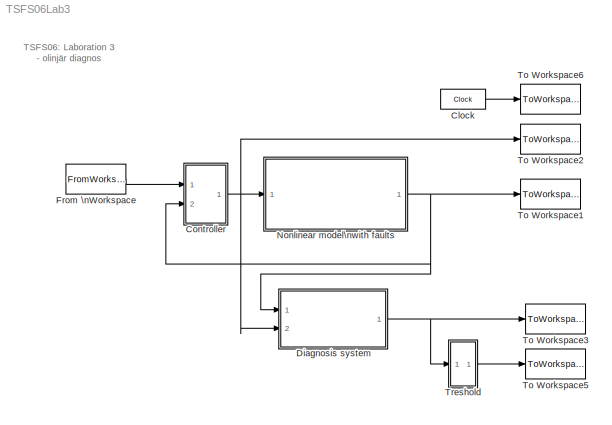
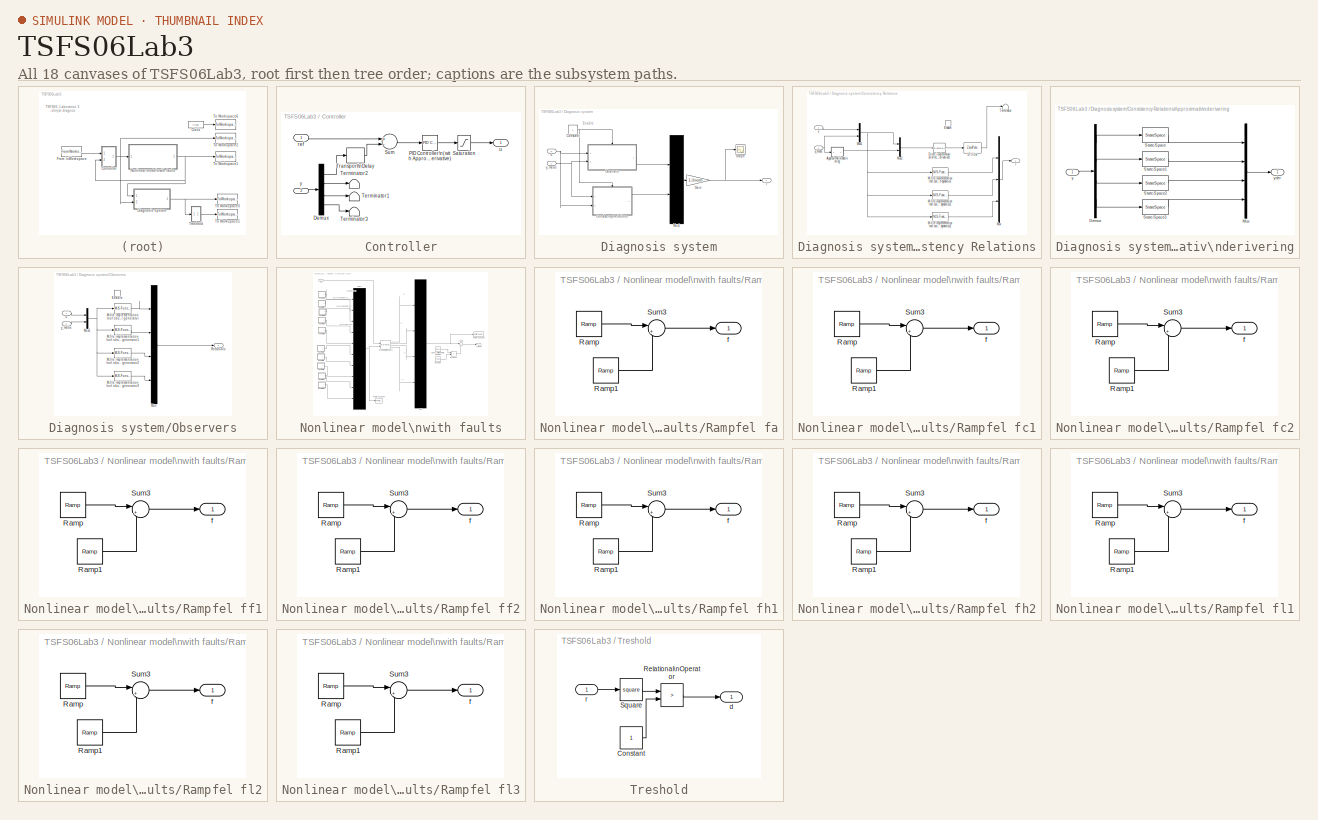
[diagram: thumbnail index - all 18 canvases of the model, root first then tree order]
MODEL TSFS06Lab3
KIND model
BLOCK [Clock] Clock
  DisplayTime = on
  SID = 1
BLOCK [SubSystem] Controller
  Ports = [2, 1]
  RequestExecContextInheritance = off
  SID = 2
BLOCK [Demux] Controller/Demux
  Ports = [1, 4]
  SID = 5
BLOCK [Reference] Controller/PID Controller\n(with Approximate\nDerivative)  REF=simulink_need_slupdate/PID Controller\n(with Approximate\nDerivative)
  D = 0
  I = 4
  N = 100
  P = 10
  Ports = [1, 1]
  SID = 6
  SourceBlock = simulink_need_slupdate/PID Controller\n(with Approximate\nDerivative)
  SourceProductBaseCode = SL
  SourceProductName = Simulink
  SourceType = PID(2) Controller
BLOCK [Saturate] Controller/Saturation
  InputPortMap = u0
  LowerLimit = 0
  Ports = [1, 1]
  SID = 7
  SampleTime = 0.1
  UpperLimit = 10
BLOCK [Sum] Controller/Sum
  Inputs = +-
  Ports = [2, 1]
  SID = 8
BLOCK [Terminator] Controller/Terminator1
  SID = 9
BLOCK [Terminator] Controller/Terminator2
  SID = 10
BLOCK [Terminator] Controller/Terminator3
  SID = 11
BLOCK [TransportDelay] Controller/Transport\nDelay
  DelayTime = 0.1
  InitialOutput = h1Init
  Ports = [1, 1]
  SID = 12
BLOCK [Inport] Controller/ref
  IconDisplay = Port number
  SID = 3
BLOCK [Outport] Controller/u
  IconDisplay = Port number
  SID = 13
BLOCK [Inport] Controller/y
  IconDisplay = Port number
  Port = 2
  SID = 4
BLOCK [SubSystem] Diagnosis system
  Ports = [2, 1]
  RequestExecContextInheritance = off
  SID = 14
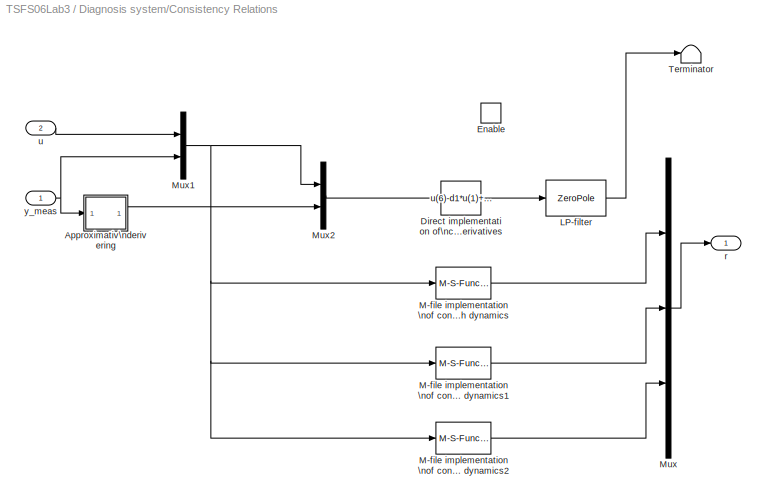
BLOCK [SubSystem] Diagnosis system/Consistency Relations
  Ports = [2, 1, 1]
  RequestExecContextInheritance = off
  SID = 17
BLOCK [SubSystem] Diagnosis system/Consistency Relations/Approximativ\nderivering
  Ports = [1, 1]
  RequestExecContextInheritance = off
  SID = 21
BLOCK [Demux] Diagnosis system/Consistency Relations/Approximativ\nderivering/Demux
  Ports = [1, 4]
  SID = 23
BLOCK [Mux] Diagnosis system/Consistency Relations/Approximativ\nderivering/Mux
  DisplayOption = bar
  Ports = [4, 1]
  SID = 24
BLOCK [StateSpace] Diagnosis system/Consistency Relations/Approximativ\nderivering/State-Space
  A = s
  B = -s^2
  D = -s
  InitialCondition = s*watertankparams.x0(1)
  Ports = [1, 1]
  SID = 136
BLOCK [StateSpace] Diagnosis system/Consistency Relations/Approximativ\nderivering/State-Space1
  A = s
  B = -s^2
  D = -s
  InitialCondition = s*watertankparams.x0(2)
  Ports = [1, 1]
  SID = 138
BLOCK [StateSpace] Diagnosis system/Consistency Relations/Approximativ\nderivering/State-Space2
  A = s
  B = -s^2
  D = -s
  InitialCondition = s*watertankparams.d(5)*sqrt(watertankparams.x0(1))
  Ports = [1, 1]
  SID = 139
BLOCK [StateSpace] Diagnosis system/Consistency Relations/Approximativ\nderivering/State-Space3
  A = s
  B = -s^2
  D = -s
  InitialCondition = s*watertankparams.d(6)*sqrt(watertankparams.x0(2))
  Ports = [1, 1]
  SID = 140
BLOCK [Inport] Diagnosis system/Consistency Relations/Approximativ\nderivering/y
  IconDisplay = Port number
  SID = 22
BLOCK [Outport] Diagnosis system/Consistency Relations/Approximativ\nderivering/yder
  IconDisplay = Port number
  SID = 29
BLOCK [Fcn] Diagnosis system/Consistency Relations/Direct implementation of\nconsistency relations using approximated\nderivatives
  Expr = u(6)-d1*u(1)+d2*sqrt(u(2))
  SID = 30
BLOCK [EnablePort] Diagnosis system/Consistency Relations/Enable
  Ports = []
  SID = 20
BLOCK [ZeroPole] Diagnosis system/Consistency Relations/LP-filter
  Poles = [-1]
  SID = 141
  Zeros = []
BLOCK [M-S-Function] Diagnosis system/Consistency Relations/M-file implementation\nof consistency relation\nwith dynamics
  FunctionName = consrel1
  Parameters = c1params
  Ports = [1, 1]
  SID = 32
BLOCK [M-S-Function] Diagnosis system/Consistency Relations/M-file implementation\nof consistency relation\nwith dynamics1
  FunctionName = consrel2
  Parameters = c2params
  Ports = [1, 1]
  SID = 153
BLOCK [M-S-Function] Diagnosis system/Consistency Relations/M-file implementation\nof consistency relation\nwith dynamics2
  FunctionName = consrel3
  Parameters = c3params
  Ports = [1, 1]
  SID = 161
BLOCK [Mux] Diagnosis system/Consistency Relations/Mux
  DisplayOption = bar
  Inputs = 3
  Ports = [3, 1]
  SID = 33
BLOCK [Mux] Diagnosis system/Consistency Relations/Mux1
  DisplayOption = bar
  Inputs = 2
  Ports = [2, 1]
  SID = 34
BLOCK [Mux] Diagnosis system/Consistency Relations/Mux2
  DisplayOption = bar
  Inputs = 2
  Ports = [2, 1]
  SID = 35
BLOCK [Terminator] Diagnosis system/Consistency Relations/Terminator
  SID = 162
BLOCK [Outport] Diagnosis system/Consistency Relations/r
  IconDisplay = Port number
  SID = 36
BLOCK [Inport] Diagnosis system/Consistency Relations/u
  IconDisplay = Port number
  Port = 2
  SID = 19
BLOCK [Inport] Diagnosis system/Consistency Relations/y_meas
  IconDisplay = Port number
  SID = 18
BLOCK [Constant] Diagnosis system/Constant
  SID = 37
BLOCK [Gain] Diagnosis system/Gain
  Gain = 1./Jnorm
  SID = 38
BLOCK [Mux] Diagnosis system/Mux1
  Inputs = 2
  Ports = [2, 1]
  SID = 39
BLOCK [SubSystem] Diagnosis system/Observers
  Ports = [2, 1, 1]
  RequestExecContextInheritance = off
  SID = 40
BLOCK [EnablePort] Diagnosis system/Observers/Enable
  Ports = []
  SID = 43
BLOCK [M-S-Function] Diagnosis system/Observers/M-file implementation\nof observer based\nresidual generator
  FunctionName = obs1
  Parameters = obs1params
  Ports = [1, 1]
  SID = 44
BLOCK [M-S-Function] Diagnosis system/Observers/M-file implementation\nof observer based\nresidual generator1
  FunctionName = obs2
  Parameters = obs2params
  Ports = [1, 1]
  SID = 157
BLOCK [M-S-Function] Diagnosis system/Observers/M-file implementation\nof observer based\nresidual generator2
  FunctionName = obs3
  Parameters = obs3params
  Ports = [1, 1]
  SID = 158
BLOCK [M-S-Function] Diagnosis system/Observers/M-file implementation\nof observer based\nresidual generator3
  FunctionName = obs4
  Parameters = obs4params
  Ports = [1, 1]
  SID = 159
BLOCK [Mux] Diagnosis system/Observers/Mux
  Ports = [4, 1]
  SID = 45
BLOCK [Mux] Diagnosis system/Observers/Mux1
  DisplayOption = bar
  Inputs = 2
  Ports = [2, 1]
  SID = 46
BLOCK [Outport] Diagnosis system/Observers/Residuals
  IconDisplay = Port number
  SID = 47
BLOCK [Inport] Diagnosis system/Observers/u
  IconDisplay = Port number
  SID = 41
BLOCK [Inport] Diagnosis system/Observers/y_meas
  IconDisplay = Port number
  Port = 2
  SID = 42
BLOCK [Scope] Diagnosis system/Scope
  Floating = off
  NumInputPorts = 1
  Ports = [1]
  SID = 167
  ScopeSpecificationString = Simulink.scopes.TimeScopeBlockCfg('CurrentConfiguration', extmgr.ConfigurationSet(extmgr.Configuration('Core','General UI',true),extmgr.Configuration('Core','Source UI',true),extmgr.Configuration('Sources','WiredSimulink',true),extmgr.Configuration('Visuals','Time Domain',true,'SerializedDisplays',{struct('MinYLimReal','-20.70192','MaxYLimReal','5.16699','YLabelReal','','MinYLimMag','0.00000','Max...<+1592ch>
BLOCK [Outport] Diagnosis system/r
  IconDisplay = Port number
  SID = 48
BLOCK [Inport] Diagnosis system/u
  IconDisplay = Port number
  Port = 2
  SID = 16
BLOCK [Inport] Diagnosis system/y_meas
  IconDisplay = Port number
  SID = 15
BLOCK [FromWorkspace] From \nWorkspace
  SID = 49
  SampleTime = 0.1
  VariableName = [t,Uref]
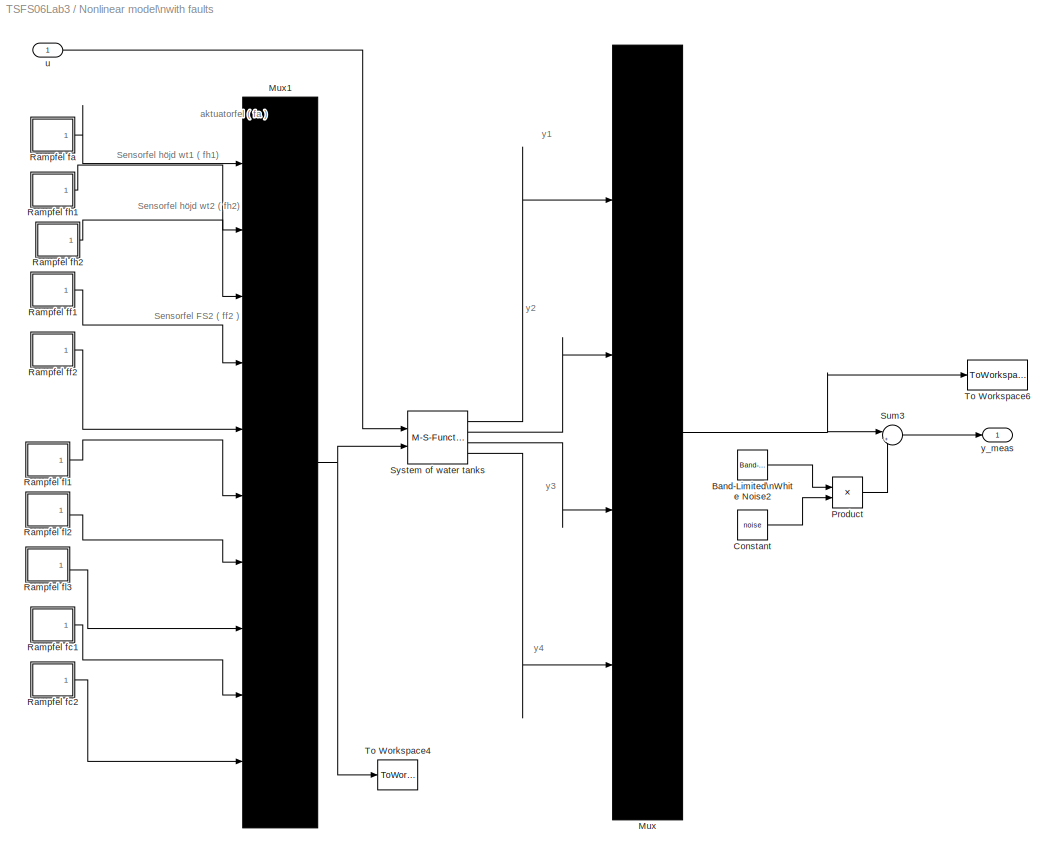
BLOCK [SubSystem] Nonlinear model\nwith faults
  Ports = [1, 1]
  RequestExecContextInheritance = off
  SID = 50
BLOCK [Reference] Nonlinear model\nwith faults/Band-Limited\nWhite Noise2  REF=simulink/Sources/Band-Limited\nWhite Noise
  Cov = NoiseCov
  Ports = [0, 1]
  SID = 52
  SourceBlock = simulink/Sources/Band-Limited\nWhite Noise
  SourceProductBaseCode = SL
  SourceProductName = Simulink
  SourceType = Band-Limited White Noise.
  Ts = 0.1
  VectorParams1D = on
  seed = NoiseSeed
BLOCK [Constant] Nonlinear model\nwith faults/Constant
  SID = 53
  Value = noise
BLOCK [Mux] Nonlinear model\nwith faults/Mux
  Ports = [4, 1]
  SID = 54
BLOCK [Mux] Nonlinear model\nwith faults/Mux1
  Inputs = 10
  Ports = [10, 1]
  SID = 55
BLOCK [Product] Nonlinear model\nwith faults/Product
  InputSameDT = off
  OutDataTypeStr = Inherit: Inherit via internal rule
  Ports = [2, 1]
  SID = 56
  SaturateOnIntegerOverflow = off
BLOCK [SubSystem] Nonlinear model\nwith faults/Rampfel fa
  Ports = [0, 1]
  RequestExecContextInheritance = off
  SID = 57
BLOCK [Reference] Nonlinear model\nwith faults/Rampfel fa/Ramp  REF=simulink/Sources/Ramp
  InitialOutput = 0
  Ports = [0, 1]
  SID = 58
  SourceBlock = simulink/Sources/Ramp
  SourceProductBaseCode = SL
  SourceProductName = Simulink
  SourceType = Ramp
  VectorParams1D = on
  slope = fault/traise
  start = tstep
BLOCK [Reference] Nonlinear model\nwith faults/Rampfel fa/Ramp1  REF=simulink/Sources/Ramp
  InitialOutput = 0
  Ports = [0, 1]
  SID = 59
  SourceBlock = simulink/Sources/Ramp
  SourceProductBaseCode = SL
  SourceProductName = Simulink
  SourceType = Ramp
  VectorParams1D = on
  slope = fault/traise
  start = tstep+traise
BLOCK [Sum] Nonlinear model\nwith faults/Rampfel fa/Sum3
  IconShape = round
  Inputs = |+-
  Ports = [2, 1]
  SID = 60
BLOCK [Outport] Nonlinear model\nwith faults/Rampfel fa/f
  IconDisplay = Port number
  SID = 61
BLOCK [SubSystem] Nonlinear model\nwith faults/Rampfel fc1
  Ports = [0, 1]
  RequestExecContextInheritance = off
  SID = 62
BLOCK [Reference] Nonlinear model\nwith faults/Rampfel fc1/Ramp  REF=simulink/Sources/Ramp
  InitialOutput = 0
  Ports = [0, 1]
  SID = 63
  SourceBlock = simulink/Sources/Ramp
  SourceProductBaseCode = SL
  SourceProductName = Simulink
  SourceType = Ramp
  VectorParams1D = on
  slope = fault/traise
  start = tstep
BLOCK [Reference] Nonlinear model\nwith faults/Rampfel fc1/Ramp1  REF=simulink/Sources/Ramp
  InitialOutput = 0
  Ports = [0, 1]
  SID = 64
  SourceBlock = simulink/Sources/Ramp
  SourceProductBaseCode = SL
  SourceProductName = Simulink
  SourceType = Ramp
  VectorParams1D = on
  slope = fault/traise
  start = tstep+traise
BLOCK [Sum] Nonlinear model\nwith faults/Rampfel fc1/Sum3
  IconShape = round
  Inputs = |+-
  Ports = [2, 1]
  SID = 65
BLOCK [Outport] Nonlinear model\nwith faults/Rampfel fc1/f
  IconDisplay = Port number
  SID = 66
BLOCK [SubSystem] Nonlinear model\nwith faults/Rampfel fc2
  Ports = [0, 1]
  RequestExecContextInheritance = off
  SID = 67
BLOCK [Reference] Nonlinear model\nwith faults/Rampfel fc2/Ramp  REF=simulink/Sources/Ramp
  InitialOutput = 0
  Ports = [0, 1]
  SID = 68
  SourceBlock = simulink/Sources/Ramp
  SourceProductBaseCode = SL
  SourceProductName = Simulink
  SourceType = Ramp
  VectorParams1D = on
  slope = fault/traise
  start = tstep
BLOCK [Reference] Nonlinear model\nwith faults/Rampfel fc2/Ramp1  REF=simulink/Sources/Ramp
  InitialOutput = 0
  Ports = [0, 1]
  SID = 69
  SourceBlock = simulink/Sources/Ramp
  SourceProductBaseCode = SL
  SourceProductName = Simulink
  SourceType = Ramp
  VectorParams1D = on
  slope = fault/traise
  start = tstep+traise
BLOCK [Sum] Nonlinear model\nwith faults/Rampfel fc2/Sum3
  IconShape = round
  Inputs = |+-
  Ports = [2, 1]
  SID = 70
BLOCK [Outport] Nonlinear model\nwith faults/Rampfel fc2/f
  IconDisplay = Port number
  SID = 71
BLOCK [SubSystem] Nonlinear model\nwith faults/Rampfel ff1
  Ports = [0, 1]
  RequestExecContextInheritance = off
  SID = 72
BLOCK [Reference] Nonlinear model\nwith faults/Rampfel ff1/Ramp  REF=simulink/Sources/Ramp
  InitialOutput = 0
  Ports = [0, 1]
  SID = 73
  SourceBlock = simulink/Sources/Ramp
  SourceProductBaseCode = SL
  SourceProductName = Simulink
  SourceType = Ramp
  VectorParams1D = on
  slope = fault/traise
  start = tstep
BLOCK [Reference] Nonlinear model\nwith faults/Rampfel ff1/Ramp1  REF=simulink/Sources/Ramp
  InitialOutput = 0
  Ports = [0, 1]
  SID = 74
  SourceBlock = simulink/Sources/Ramp
  SourceProductBaseCode = SL
  SourceProductName = Simulink
  SourceType = Ramp
  VectorParams1D = on
  slope = fault/traise
  start = tstep+traise
BLOCK [Sum] Nonlinear model\nwith faults/Rampfel ff1/Sum3
  IconShape = round
  Inputs = |+-
  Ports = [2, 1]
  SID = 75
BLOCK [Outport] Nonlinear model\nwith faults/Rampfel ff1/f
  IconDisplay = Port number
  SID = 76
BLOCK [SubSystem] Nonlinear model\nwith faults/Rampfel ff2
  Ports = [0, 1]
  RequestExecContextInheritance = off
  SID = 77
BLOCK [Reference] Nonlinear model\nwith faults/Rampfel ff2/Ramp  REF=simulink/Sources/Ramp
  InitialOutput = 0
  Ports = [0, 1]
  SID = 78
  SourceBlock = simulink/Sources/Ramp
  SourceProductBaseCode = SL
  SourceProductName = Simulink
  SourceType = Ramp
  VectorParams1D = on
  slope = fault/traise
  start = tstep
BLOCK [Reference] Nonlinear model\nwith faults/Rampfel ff2/Ramp1  REF=simulink/Sources/Ramp
  InitialOutput = 0
  Ports = [0, 1]
  SID = 79
  SourceBlock = simulink/Sources/Ramp
  SourceProductBaseCode = SL
  SourceProductName = Simulink
  SourceType = Ramp
  VectorParams1D = on
  slope = fault/traise
  start = tstep+traise
BLOCK [Sum] Nonlinear model\nwith faults/Rampfel ff2/Sum3
  IconShape = round
  Inputs = |+-
  Ports = [2, 1]
  SID = 80
BLOCK [Outport] Nonlinear model\nwith faults/Rampfel ff2/f
  IconDisplay = Port number
  SID = 81
BLOCK [SubSystem] Nonlinear model\nwith faults/Rampfel fh1
  Ports = [0, 1]
  RequestExecContextInheritance = off
  SID = 82
BLOCK [Reference] Nonlinear model\nwith faults/Rampfel fh1/Ramp  REF=simulink/Sources/Ramp
  InitialOutput = 0
  Ports = [0, 1]
  SID = 83
  SourceBlock = simulink/Sources/Ramp
  SourceProductBaseCode = SL
  SourceProductName = Simulink
  SourceType = Ramp
  VectorParams1D = on
  slope = fault/traise
  start = tstep
BLOCK [Reference] Nonlinear model\nwith faults/Rampfel fh1/Ramp1  REF=simulink/Sources/Ramp
  InitialOutput = 0
  Ports = [0, 1]
  SID = 84
  SourceBlock = simulink/Sources/Ramp
  SourceProductBaseCode = SL
  SourceProductName = Simulink
  SourceType = Ramp
  VectorParams1D = on
  slope = fault/traise
  start = tstep+traise
BLOCK [Sum] Nonlinear model\nwith faults/Rampfel fh1/Sum3
  IconShape = round
  Inputs = |+-
  Ports = [2, 1]
  SID = 85
BLOCK [Outport] Nonlinear model\nwith faults/Rampfel fh1/f
  IconDisplay = Port number
  SID = 86
BLOCK [SubSystem] Nonlinear model\nwith faults/Rampfel fh2
  Ports = [0, 1]
  RequestExecContextInheritance = off
  SID = 87
BLOCK [Reference] Nonlinear model\nwith faults/Rampfel fh2/Ramp  REF=simulink/Sources/Ramp
  InitialOutput = 0
  Ports = [0, 1]
  SID = 88
  SourceBlock = simulink/Sources/Ramp
  SourceProductBaseCode = SL
  SourceProductName = Simulink
  SourceType = Ramp
  VectorParams1D = on
  slope = fault/traise
  start = tstep
BLOCK [Reference] Nonlinear model\nwith faults/Rampfel fh2/Ramp1  REF=simulink/Sources/Ramp
  InitialOutput = 0
  Ports = [0, 1]
  SID = 89
  SourceBlock = simulink/Sources/Ramp
  SourceProductBaseCode = SL
  SourceProductName = Simulink
  SourceType = Ramp
  VectorParams1D = on
  slope = fault/traise
  start = tstep+traise
BLOCK [Sum] Nonlinear model\nwith faults/Rampfel fh2/Sum3
  IconShape = round
  Inputs = |+-
  Ports = [2, 1]
  SID = 90
BLOCK [Outport] Nonlinear model\nwith faults/Rampfel fh2/f
  IconDisplay = Port number
  SID = 91
BLOCK [SubSystem] Nonlinear model\nwith faults/Rampfel fl1
  Ports = [0, 1]
  RequestExecContextInheritance = off
  SID = 92
BLOCK [Reference] Nonlinear model\nwith faults/Rampfel fl1/Ramp  REF=simulink/Sources/Ramp
  InitialOutput = 0
  Ports = [0, 1]
  SID = 93
  SourceBlock = simulink/Sources/Ramp
  SourceProductBaseCode = SL
  SourceProductName = Simulink
  SourceType = Ramp
  VectorParams1D = on
  slope = fault/traise
  start = tstep
BLOCK [Reference] Nonlinear model\nwith faults/Rampfel fl1/Ramp1  REF=simulink/Sources/Ramp
  InitialOutput = 0
  Ports = [0, 1]
  SID = 94
  SourceBlock = simulink/Sources/Ramp
  SourceProductBaseCode = SL
  SourceProductName = Simulink
  SourceType = Ramp
  VectorParams1D = on
  slope = fault/traise
  start = tstep+traise
BLOCK [Sum] Nonlinear model\nwith faults/Rampfel fl1/Sum3
  IconShape = round
  Inputs = |+-
  Ports = [2, 1]
  SID = 95
BLOCK [Outport] Nonlinear model\nwith faults/Rampfel fl1/f
  IconDisplay = Port number
  SID = 96
BLOCK [SubSystem] Nonlinear model\nwith faults/Rampfel fl2
  Ports = [0, 1]
  RequestExecContextInheritance = off
  SID = 97
BLOCK [Reference] Nonlinear model\nwith faults/Rampfel fl2/Ramp  REF=simulink/Sources/Ramp
  InitialOutput = 0
  Ports = [0, 1]
  SID = 98
  SourceBlock = simulink/Sources/Ramp
  SourceProductBaseCode = SL
  SourceProductName = Simulink
  SourceType = Ramp
  VectorParams1D = on
  slope = fault/traise
  start = tstep
BLOCK [Reference] Nonlinear model\nwith faults/Rampfel fl2/Ramp1  REF=simulink/Sources/Ramp
  InitialOutput = 0
  Ports = [0, 1]
  SID = 99
  SourceBlock = simulink/Sources/Ramp
  SourceProductBaseCode = SL
  SourceProductName = Simulink
  SourceType = Ramp
  VectorParams1D = on
  slope = fault/traise
  start = tstep+traise
BLOCK [Sum] Nonlinear model\nwith faults/Rampfel fl2/Sum3
  IconShape = round
  Inputs = |+-
  Ports = [2, 1]
  SID = 100
BLOCK [Outport] Nonlinear model\nwith faults/Rampfel fl2/f
  IconDisplay = Port number
  SID = 101
BLOCK [SubSystem] Nonlinear model\nwith faults/Rampfel fl3
  Ports = [0, 1]
  RequestExecContextInheritance = off
  SID = 102
BLOCK [Reference] Nonlinear model\nwith faults/Rampfel fl3/Ramp  REF=simulink/Sources/Ramp
  InitialOutput = 0
  Ports = [0, 1]
  SID = 103
  SourceBlock = simulink/Sources/Ramp
  SourceProductBaseCode = SL
  SourceProductName = Simulink
  SourceType = Ramp
  VectorParams1D = on
  slope = fault/traise
  start = tstep
BLOCK [Reference] Nonlinear model\nwith faults/Rampfel fl3/Ramp1  REF=simulink/Sources/Ramp
  InitialOutput = 0
  Ports = [0, 1]
  SID = 104
  SourceBlock = simulink/Sources/Ramp
  SourceProductBaseCode = SL
  SourceProductName = Simulink
  SourceType = Ramp
  VectorParams1D = on
  slope = fault/traise
  start = tstep+traise
BLOCK [Sum] Nonlinear model\nwith faults/Rampfel fl3/Sum3
  IconShape = round
  Inputs = |+-
  Ports = [2, 1]
  SID = 105
BLOCK [Outport] Nonlinear model\nwith faults/Rampfel fl3/f
  IconDisplay = Port number
  SID = 106
BLOCK [Sum] Nonlinear model\nwith faults/Sum3
  IconShape = round
  Inputs = |++
  Ports = [2, 1]
  SID = 107
BLOCK [M-S-Function] Nonlinear model\nwith faults/System of water tanks
  FunctionName = watertank
  Parameters = watertankparams
  Ports = [2, 4]
  SID = 108
BLOCK [ToWorkspace] Nonlinear model\nwith faults/To Workspace4
  MaxDataPoints = inf
  Ports = [1]
  SID = 109
  SampleTime = 0.1
  VariableName = f
BLOCK [ToWorkspace] Nonlinear model\nwith faults/To Workspace6
  MaxDataPoints = inf
  Ports = [1]
  SID = 110
  SampleTime = 0.1
  VariableName = foo
BLOCK [Inport] Nonlinear model\nwith faults/u
  IconDisplay = Port number
  SID = 51
BLOCK [Outport] Nonlinear model\nwith faults/y_meas
  IconDisplay = Port number
  SID = 111
BLOCK [ToWorkspace] To Workspace1
  MaxDataPoints = inf
  Ports = [1]
  SID = 112
  SampleTime = 0.1
  VariableName = y
BLOCK [ToWorkspace] To Workspace2
  MaxDataPoints = inf
  Ports = [1]
  SID = 113
  SampleTime = 0.1
  VariableName = styr
BLOCK [ToWorkspace] To Workspace3
  MaxDataPoints = inf
  Ports = [1]
  SID = 114
  SampleTime = 0.1
  VariableName = res
BLOCK [ToWorkspace] To Workspace5
  MaxDataPoints = inf
  Ports = [1]
  SID = 115
  SampleTime = 0.1
  VariableName = T
BLOCK [ToWorkspace] To Workspace6
  MaxDataPoints = inf
  Ports = [1]
  SID = 116
  SampleTime = 0.1
  VariableName = tut
BLOCK [SubSystem] Treshold
  Ports = [1, 1]
  RequestExecContextInheritance = off
  SID = 117
BLOCK [Constant] Treshold/Constant
  SID = 120
BLOCK [RelationalOperator] Treshold/Relational\nOperator
  Operator = >
  Ports = [2, 1]
  SID = 121
BLOCK [Math] Treshold/Square
  Operator = square
  Ports = [1, 1]
  SID = 124
BLOCK [Outport] Treshold/d
  IconDisplay = Port number
  SID = 122
BLOCK [Inport] Treshold/r
  IconDisplay = Port number
  SID = 118
ANNOTATION (root): TSFS06: Laboration 3\n- olinjär diagnos
ANNOTATION Diagnosis system: Enable
ANNOTATION Nonlinear model\nwith faults: Sensorfel FS2 ( ff2 )
ANNOTATION Nonlinear model\nwith faults: Sensorfel höjd wt1 ( fh1)
ANNOTATION Nonlinear model\nwith faults: Sensorfel höjd wt2 ( fh2)
ANNOTATION Nonlinear model\nwith faults: aktuatorfel ( fa )
ANNOTATION Nonlinear model\nwith faults: y1
ANNOTATION Nonlinear model\nwith faults: y2
ANNOTATION Nonlinear model\nwith faults: y3
ANNOTATION Nonlinear model\nwith faults: y4
LINE Clock:1 -> To Workspace6:1
LINE Controller/Demux:1 -> Controller/Transport\nDelay:1
LINE Controller/Demux:2 -> Controller/Terminator2:1
LINE Controller/Demux:3 -> Controller/Terminator1:1
LINE Controller/Demux:4 -> Controller/Terminator3:1
LINE Controller/PID Controller\n(with Approximate\nDerivative):1 -> Controller/Saturation:1
LINE Controller/Saturation:1 -> Controller/u:1
LINE Controller/Sum:1 -> Controller/PID Controller\n(with Approximate\nDerivative):1
LINE Controller/Transport\nDelay:1 -> Controller/Sum:2
LINE Controller/ref:1 -> Controller/Sum:1
LINE Controller/y:1 -> Controller/Demux:1
NET Controller:1 -> Diagnosis system:2, Nonlinear model\nwith faults:1, To Workspace2:1
LINE Diagnosis system/Consistency Relations/Approximativ\nderivering/Demux:1 -> Diagnosis system/Consistency Relations/Approximativ\nderivering/State-Space:1
LINE Diagnosis system/Consistency Relations/Approximativ\nderivering/Demux:2 -> Diagnosis system/Consistency Relations/Approximativ\nderivering/State-Space1:1
LINE Diagnosis system/Consistency Relations/Approximativ\nderivering/Demux:3 -> Diagnosis system/Consistency Relations/Approximativ\nderivering/State-Space2:1
LINE Diagnosis system/Consistency Relations/Approximativ\nderivering/Demux:4 -> Diagnosis system/Consistency Relations/Approximativ\nderivering/State-Space3:1
LINE Diagnosis system/Consistency Relations/Approximativ\nderivering/Mux:1 -> Diagnosis system/Consistency Relations/Approximativ\nderivering/yder:1
LINE Diagnosis system/Consistency Relations/Approximativ\nderivering/State-Space1:1 -> Diagnosis system/Consistency Relations/Approximativ\nderivering/Mux:2
LINE Diagnosis system/Consistency Relations/Approximativ\nderivering/State-Space2:1 -> Diagnosis system/Consistency Relations/Approximativ\nderivering/Mux:3
LINE Diagnosis system/Consistency Relations/Approximativ\nderivering/State-Space3:1 -> Diagnosis system/Consistency Relations/Approximativ\nderivering/Mux:4
LINE Diagnosis system/Consistency Relations/Approximativ\nderivering/State-Space:1 -> Diagnosis system/Consistency Relations/Approximativ\nderivering/Mux:1
LINE Diagnosis system/Consistency Relations/Approximativ\nderivering/y:1 -> Diagnosis system/Consistency Relations/Approximativ\nderivering/Demux:1
LINE Diagnosis system/Consistency Relations/Approximativ\nderivering:1 -> Diagnosis system/Consistency Relations/Mux2:2
LINE Diagnosis system/Consistency Relations/Direct implementation of\nconsistency relations using approximated\nderivatives:1 -> Diagnosis system/Consistency Relations/LP-filter:1
LINE Diagnosis system/Consistency Relations/LP-filter:1 -> Diagnosis system/Consistency Relations/Terminator:1
LINE Diagnosis system/Consistency Relations/M-file implementation\nof consistency relation\nwith dynamics1:1 -> Diagnosis system/Consistency Relations/Mux:2
LINE Diagnosis system/Consistency Relations/M-file implementation\nof consistency relation\nwith dynamics2:1 -> Diagnosis system/Consistency Relations/Mux:3
LINE Diagnosis system/Consistency Relations/M-file implementation\nof consistency relation\nwith dynamics:1 -> Diagnosis system/Consistency Relations/Mux:1
NET Diagnosis system/Consistency Relations/Mux1:1 -> Diagnosis system/Consistency Relations/M-file implementation\nof consistency relation\nwith dynamics1:1, Diagnosis system/Consistency Relations/M-file implementation\nof consistency relation\nwith dynamics2:1, Diagnosis system/Consistency Relations/M-file implementation\nof consistency relation\nwith dynamics:1, Diagnosis system/Consistency Relations/Mux2:1
LINE Diagnosis system/Consistency Relations/Mux2:1 -> Diagnosis system/Consistency Relations/Direct implementation of\nconsistency relations using approximated\nderivatives:1
LINE Diagnosis system/Consistency Relations/Mux:1 -> Diagnosis system/Consistency Relations/r:1
LINE Diagnosis system/Consistency Relations/u:1 -> Diagnosis system/Consistency Relations/Mux1:1
NET Diagnosis system/Consistency Relations/y_meas:1 -> Diagnosis system/Consistency Relations/Approximativ\nderivering:1, Diagnosis system/Consistency Relations/Mux1:2
LINE Diagnosis system/Consistency Relations:1 -> Diagnosis system/Mux1:2
NET Diagnosis system/Constant:1 -> Diagnosis system/Consistency Relations:enable, Diagnosis system/Observers:enable
NET Diagnosis system/Gain:1 -> Diagnosis system/Scope:1, Diagnosis system/r:1
LINE Diagnosis system/Mux1:1 -> Diagnosis system/Gain:1
LINE Diagnosis system/Observers/M-file implementation\nof observer based\nresidual generator1:1 -> Diagnosis system/Observers/Mux:2
LINE Diagnosis system/Observers/M-file implementation\nof observer based\nresidual generator2:1 -> Diagnosis system/Observers/Mux:3
LINE Diagnosis system/Observers/M-file implementation\nof observer based\nresidual generator3:1 -> Diagnosis system/Observers/Mux:4
LINE Diagnosis system/Observers/M-file implementation\nof observer based\nresidual generator:1 -> Diagnosis system/Observers/Mux:1
NET Diagnosis system/Observers/Mux1:1 -> Diagnosis system/Observers/M-file implementation\nof observer based\nresidual generator1:1, Diagnosis system/Observers/M-file implementation\nof observer based\nresidual generator2:1, Diagnosis system/Observers/M-file implementation\nof observer based\nresidual generator3:1, Diagnosis system/Observers/M-file implementation\nof observer based\nresidual generator:1
LINE Diagnosis system/Observers/Mux:1 -> Diagnosis system/Observers/Residuals:1
LINE Diagnosis system/Observers/u:1 -> Diagnosis system/Observers/Mux1:1
LINE Diagnosis system/Observers/y_meas:1 -> Diagnosis system/Observers/Mux1:2
LINE Diagnosis system/Observers:1 -> Diagnosis system/Mux1:1
NET Diagnosis system/u:1 -> Diagnosis system/Consistency Relations:2, Diagnosis system/Observers:1
NET Diagnosis system/y_meas:1 -> Diagnosis system/Consistency Relations:1, Diagnosis system/Observers:2
NET Diagnosis system:1 -> To Workspace3:1, Treshold:1
LINE From \nWorkspace:1 -> Controller:1
LINE Nonlinear model\nwith faults/Band-Limited\nWhite Noise2:1 -> Nonlinear model\nwith faults/Product:1
LINE Nonlinear model\nwith faults/Constant:1 -> Nonlinear model\nwith faults/Product:2
NET Nonlinear model\nwith faults/Mux1:1 -> Nonlinear model\nwith faults/System of water tanks:2, Nonlinear model\nwith faults/To Workspace4:1
NET Nonlinear model\nwith faults/Mux:1 -> Nonlinear model\nwith faults/Sum3:1, Nonlinear model\nwith faults/To Workspace6:1
LINE Nonlinear model\nwith faults/Product:1 -> Nonlinear model\nwith faults/Sum3:2
LINE Nonlinear model\nwith faults/Rampfel fa/Ramp1:1 -> Nonlinear model\nwith faults/Rampfel fa/Sum3:2
LINE Nonlinear model\nwith faults/Rampfel fa/Ramp:1 -> Nonlinear model\nwith faults/Rampfel fa/Sum3:1
LINE Nonlinear model\nwith faults/Rampfel fa/Sum3:1 -> Nonlinear model\nwith faults/Rampfel fa/f:1
LINE Nonlinear model\nwith faults/Rampfel fa:1 -> Nonlinear model\nwith faults/Mux1:1
LINE Nonlinear model\nwith faults/Rampfel fc1/Ramp1:1 -> Nonlinear model\nwith faults/Rampfel fc1/Sum3:2
LINE Nonlinear model\nwith faults/Rampfel fc1/Ramp:1 -> Nonlinear model\nwith faults/Rampfel fc1/Sum3:1
LINE Nonlinear model\nwith faults/Rampfel fc1/Sum3:1 -> Nonlinear model\nwith faults/Rampfel fc1/f:1
LINE Nonlinear model\nwith faults/Rampfel fc1:1 -> Nonlinear model\nwith faults/Mux1:9
LINE Nonlinear model\nwith faults/Rampfel fc2/Ramp1:1 -> Nonlinear model\nwith faults/Rampfel fc2/Sum3:2
LINE Nonlinear model\nwith faults/Rampfel fc2/Ramp:1 -> Nonlinear model\nwith faults/Rampfel fc2/Sum3:1
LINE Nonlinear model\nwith faults/Rampfel fc2/Sum3:1 -> Nonlinear model\nwith faults/Rampfel fc2/f:1
LINE Nonlinear model\nwith faults/Rampfel fc2:1 -> Nonlinear model\nwith faults/Mux1:10
LINE Nonlinear model\nwith faults/Rampfel ff1/Ramp1:1 -> Nonlinear model\nwith faults/Rampfel ff1/Sum3:2
LINE Nonlinear model\nwith faults/Rampfel ff1/Ramp:1 -> Nonlinear model\nwith faults/Rampfel ff1/Sum3:1
LINE Nonlinear model\nwith faults/Rampfel ff1/Sum3:1 -> Nonlinear model\nwith faults/Rampfel ff1/f:1
LINE Nonlinear model\nwith faults/Rampfel ff1:1 -> Nonlinear model\nwith faults/Mux1:4
LINE Nonlinear model\nwith faults/Rampfel ff2/Ramp1:1 -> Nonlinear model\nwith faults/Rampfel ff2/Sum3:2
LINE Nonlinear model\nwith faults/Rampfel ff2/Ramp:1 -> Nonlinear model\nwith faults/Rampfel ff2/Sum3:1
LINE Nonlinear model\nwith faults/Rampfel ff2/Sum3:1 -> Nonlinear model\nwith faults/Rampfel ff2/f:1
LINE Nonlinear model\nwith faults/Rampfel ff2:1 -> Nonlinear model\nwith faults/Mux1:5
LINE Nonlinear model\nwith faults/Rampfel fh1/Ramp1:1 -> Nonlinear model\nwith faults/Rampfel fh1/Sum3:2
LINE Nonlinear model\nwith faults/Rampfel fh1/Ramp:1 -> Nonlinear model\nwith faults/Rampfel fh1/Sum3:1
LINE Nonlinear model\nwith faults/Rampfel fh1/Sum3:1 -> Nonlinear model\nwith faults/Rampfel fh1/f:1
LINE Nonlinear model\nwith faults/Rampfel fh1:1 -> Nonlinear model\nwith faults/Mux1:2
LINE Nonlinear model\nwith faults/Rampfel fh2/Ramp1:1 -> Nonlinear model\nwith faults/Rampfel fh2/Sum3:2
LINE Nonlinear model\nwith faults/Rampfel fh2/Ramp:1 -> Nonlinear model\nwith faults/Rampfel fh2/Sum3:1
LINE Nonlinear model\nwith faults/Rampfel fh2/Sum3:1 -> Nonlinear model\nwith faults/Rampfel fh2/f:1
LINE Nonlinear model\nwith faults/Rampfel fh2:1 -> Nonlinear model\nwith faults/Mux1:3
LINE Nonlinear model\nwith faults/Rampfel fl1/Ramp1:1 -> Nonlinear model\nwith faults/Rampfel fl1/Sum3:2
LINE Nonlinear model\nwith faults/Rampfel fl1/Ramp:1 -> Nonlinear model\nwith faults/Rampfel fl1/Sum3:1
LINE Nonlinear model\nwith faults/Rampfel fl1/Sum3:1 -> Nonlinear model\nwith faults/Rampfel fl1/f:1
LINE Nonlinear model\nwith faults/Rampfel fl1:1 -> Nonlinear model\nwith faults/Mux1:6
LINE Nonlinear model\nwith faults/Rampfel fl2/Ramp1:1 -> Nonlinear model\nwith faults/Rampfel fl2/Sum3:2
LINE Nonlinear model\nwith faults/Rampfel fl2/Ramp:1 -> Nonlinear model\nwith faults/Rampfel fl2/Sum3:1
LINE Nonlinear model\nwith faults/Rampfel fl2/Sum3:1 -> Nonlinear model\nwith faults/Rampfel fl2/f:1
LINE Nonlinear model\nwith faults/Rampfel fl2:1 -> Nonlinear model\nwith faults/Mux1:7
LINE Nonlinear model\nwith faults/Rampfel fl3/Ramp1:1 -> Nonlinear model\nwith faults/Rampfel fl3/Sum3:2
LINE Nonlinear model\nwith faults/Rampfel fl3/Ramp:1 -> Nonlinear model\nwith faults/Rampfel fl3/Sum3:1
LINE Nonlinear model\nwith faults/Rampfel fl3/Sum3:1 -> Nonlinear model\nwith faults/Rampfel fl3/f:1
LINE Nonlinear model\nwith faults/Rampfel fl3:1 -> Nonlinear model\nwith faults/Mux1:8
LINE Nonlinear model\nwith faults/Sum3:1 -> Nonlinear model\nwith faults/y_meas:1
LINE Nonlinear model\nwith faults/System of water tanks:1 -> Nonlinear model\nwith faults/Mux:1
LINE Nonlinear model\nwith faults/System of water tanks:2 -> Nonlinear model\nwith faults/Mux:2
LINE Nonlinear model\nwith faults/System of water tanks:3 -> Nonlinear model\nwith faults/Mux:3
LINE Nonlinear model\nwith faults/System of water tanks:4 -> Nonlinear model\nwith faults/Mux:4
LINE Nonlinear model\nwith faults/u:1 -> Nonlinear model\nwith faults/System of water tanks:1
NET Nonlinear model\nwith faults:1 -> Controller:2, Diagnosis system:1, To Workspace1:1
LINE Treshold/Constant:1 -> Treshold/Relational\nOperator:2
LINE Treshold/Relational\nOperator:1 -> Treshold/d:1
LINE Treshold/Square:1 -> Treshold/Relational\nOperator:1
LINE Treshold/r:1 -> Treshold/Square:1
LINE Treshold:1 -> To Workspace5:1
note: NET lines group one-source signal fan-out (src -> all destinations, sorted); 1:1 wires keep LINE
